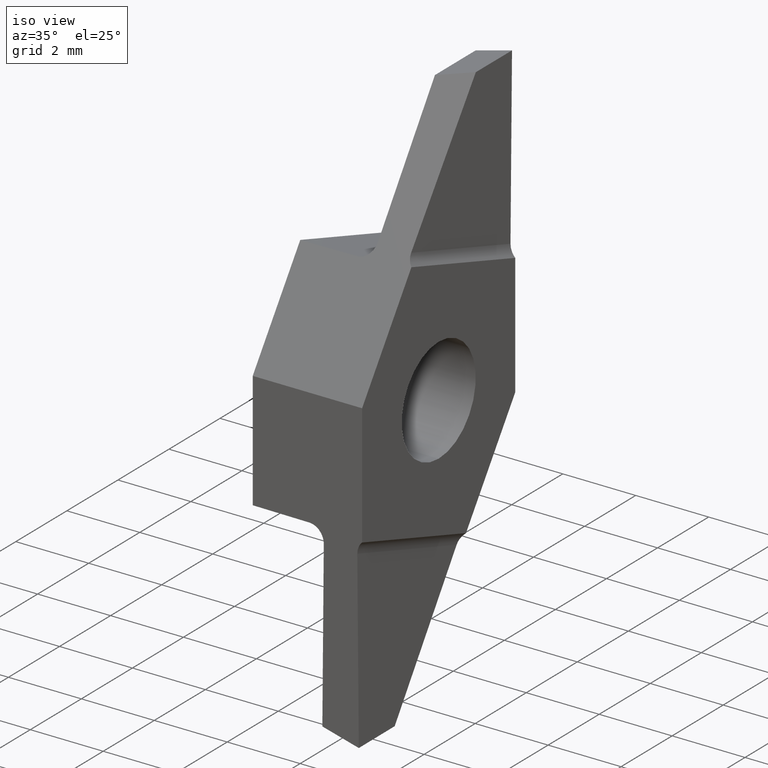
[diagram: clean part render]
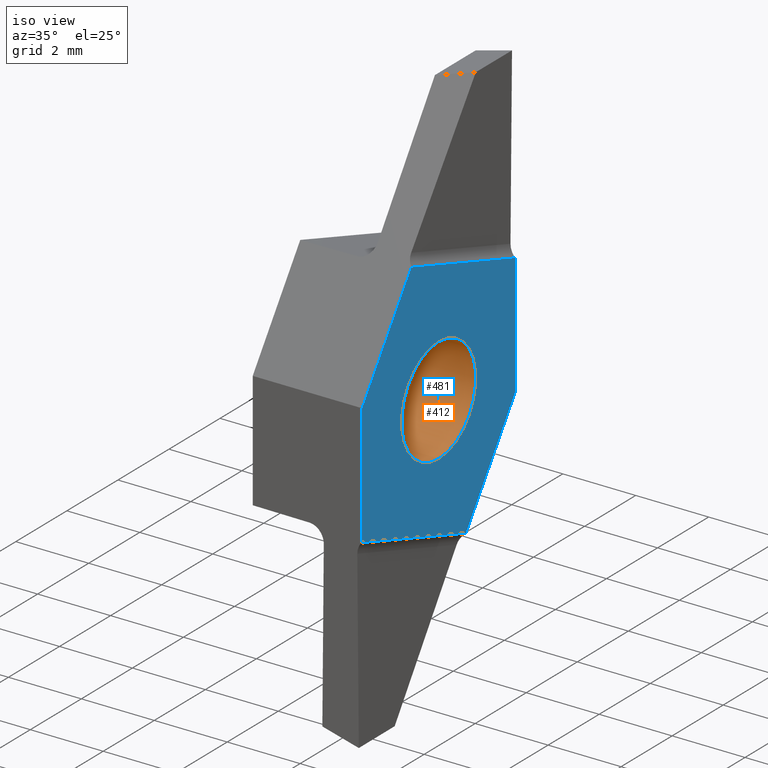
[diagram: same view with the hole feature highlighted: cylindrical wall and planar end face, labeled with their STEP entity ids]
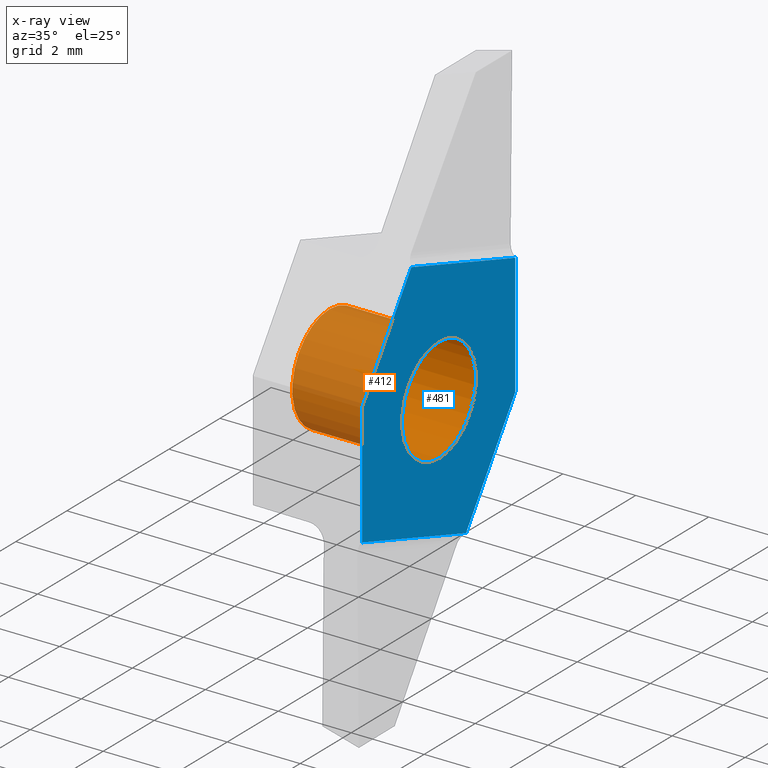
[diagram: x-ray of the same camera — body ghosted, the hole faces saturated]
A machine part, iso view. The highlighted faces form one hole feature of diameter 2.9 mm: the cylindrical wall (entity #412, orange) and its adjacent planar end face (entity #481, blue) — they share a circular edge in the B-rep.
The next image is the same camera in x-ray (body ghosted, the hole faces saturated) — the bore reads through the body.
Wall:
#6 = FACE_OUTER_BOUND ( 'NONE', #491, .T. ) ;
#44 = DIRECTION ( 'NONE',  ( -1.000000000000000000, 0.000000000000000000, 0.000000000000000000 ) ) ;
#113 = ORIENTED_EDGE ( 'NONE', *, *, #167, .T. ) ;
#155 = CIRCLE ( 'NONE', #522, 1.449999999999999067 ) ;
#158 = DIRECTION ( 'NONE',  ( 0.000000000000000000, 0.000000000000000000, -1.000000000000000000 ) ) ;
#167 = EDGE_CURVE ( 'NONE', #335, #335, #380, .T. ) ;
#224 = DIRECTION ( 'NONE',  ( 0.000000000000000000, 0.000000000000000000, -1.000000000000000000 ) ) ;
#234 = CARTESIAN_POINT ( 'NONE',  ( -1.224646799147353885E-17, 0.000000000000000000, 0.000000000000000000 ) ) ;
#277 = AXIS2_PLACEMENT_3D ( 'NONE', #464, #604, #158 ) ;
#287 = VERTEX_POINT ( 'NONE', #547 ) ;
#304 = AXIS2_PLACEMENT_3D ( 'NONE', #234, #574, #224 ) ;
#320 = CARTESIAN_POINT ( 'NONE',  ( 3.000000000000000000, 0.000000000000000000, 0.000000000000000000 ) ) ;
#335 = VERTEX_POINT ( 'NONE', #590 ) ;
#380 = CIRCLE ( 'NONE', #304, 1.449999999999999512 ) ;
#405 = CYLINDRICAL_SURFACE ( 'NONE', #277, 1.449999999999999289 ) ;
#412 = ADVANCED_FACE ( 'NONE', ( #6, #460 ), #405, .F. ) ;
#440 = ORIENTED_EDGE ( 'NONE', *, *, #552, .F. ) ;
#444 = DIRECTION ( 'NONE',  ( 0.000000000000000000, 0.000000000000000000, -1.000000000000000000 ) ) ;
#457 = EDGE_LOOP ( 'NONE', ( #113 ) ) ;
#460 = FACE_OUTER_BOUND ( 'NONE', #457, .T. ) ;
#464 = CARTESIAN_POINT ( 'NONE',  ( 0.000000000000000000, 0.000000000000000000, 0.000000000000000000 ) ) ;
#491 = EDGE_LOOP ( 'NONE', ( #440 ) ) ;
#522 = AXIS2_PLACEMENT_3D ( 'NONE', #320, #44, #444 ) ;
#547 = CARTESIAN_POINT ( 'NONE',  ( 3.000000000000000000, 0.000000000000000000, -1.449999999999999067 ) ) ;
#552 = EDGE_CURVE ( 'NONE', #287, #287, #155, .T. ) ;
#574 = DIRECTION ( 'NONE',  ( -1.000000000000000000, 0.000000000000000000, 0.000000000000000000 ) ) ;
#590 = CARTESIAN_POINT ( 'NONE',  ( -1.224646799147353885E-17, 0.000000000000000000, -1.449999999999999512 ) ) ;
#604 = DIRECTION ( 'NONE',  ( -1.000000000000000000, 0.000000000000000000, 0.000000000000000000 ) ) ;
End face:
#16 = LINE ( 'NONE', #465, #82 ) ;
#34 = LINE ( 'NONE', #328, #436 ) ;
#42 = ORIENTED_EDGE ( 'NONE', *, *, #552, .T. ) ;
#44 = DIRECTION ( 'NONE',  ( -1.000000000000000000, 0.000000000000000000, 0.000000000000000000 ) ) ;
#59 = CARTESIAN_POINT ( 'NONE',  ( 3.000000000000000000, 3.000000000000168754, -0.9458963666369464285 ) ) ;
#71 = LINE ( 'NONE', #483, #249 ) ;
#82 = VECTOR ( 'NONE', #613, 1000.000000000000227 ) ;
#86 = EDGE_CURVE ( 'NONE', #225, #420, #71, .T. ) ;
#99 = ORIENTED_EDGE ( 'NONE', *, *, #407, .T. ) ;
#114 = LINE ( 'NONE', #300, #306 ) ;
#123 = DIRECTION ( 'NONE',  ( 0.000000000000000000, 0.5735764363510444941, 0.8191520442889929088 ) ) ;
#133 = EDGE_LOOP ( 'NONE', ( #583, #270, #385, #229, #99, #189 ) ) ;
#137 = EDGE_LOOP ( 'NONE', ( #42 ) ) ;
#155 = CIRCLE ( 'NONE', #522, 1.449999999999999067 ) ;
#180 = PLANE ( 'NONE',  #199 ) ;
#188 = CARTESIAN_POINT ( 'NONE',  ( 3.000000000000000444, -1.069002824306939825, 3.703646134127897671 ) ) ;
#189 = ORIENTED_EDGE ( 'NONE', *, *, #86, .T. ) ;
#193 = VERTEX_POINT ( 'NONE', #188 ) ;
#197 = VECTOR ( 'NONE', #411, 999.9999999999998863 ) ;
#199 = AXIS2_PLACEMENT_3D ( 'NONE', #482, #432, #323 ) ;
#209 = VERTEX_POINT ( 'NONE', #496 ) ;
#212 = CARTESIAN_POINT ( 'NONE',  ( 3.000000000000000000, 1.823566348508409485, 7.834663032647361192 ) ) ;
#225 = VERTEX_POINT ( 'NONE', #59 ) ;
#229 = ORIENTED_EDGE ( 'NONE', *, *, #373, .F. ) ;
#231 = DIRECTION ( 'NONE',  ( 0.000000000000000000, 0.000000000000000000, 1.000000000000000000 ) ) ;
#235 = VERTEX_POINT ( 'NONE', #505 ) ;
#243 = EDGE_CURVE ( 'NONE', #193, #420, #554, .T. ) ;
#249 = VECTOR ( 'NONE', #231, 1000.000000000000000 ) ;
#251 = VERTEX_POINT ( 'NONE', #445 ) ;
#270 = ORIENTED_EDGE ( 'NONE', *, *, #352, .T. ) ;
#287 = VERTEX_POINT ( 'NONE', #547 ) ;
#298 = DIRECTION ( 'NONE',  ( -0.000000000000000000, 0.9510565162951556406, -0.3090169943749410675 ) ) ;
#300 = CARTESIAN_POINT ( 'NONE',  ( 3.000000000000000000, -1.823566348508071755, -7.834663032647361192 ) ) ;
#306 = VECTOR ( 'NONE', #123, 1000.000000000000114 ) ;
#320 = CARTESIAN_POINT ( 'NONE',  ( 3.000000000000000000, 0.000000000000000000, 0.000000000000000000 ) ) ;
#323 = DIRECTION ( 'NONE',  ( 0.000000000000000000, 0.000000000000000000, 1.000000000000000000 ) ) ;
#328 = CARTESIAN_POINT ( 'NONE',  ( 3.000000000000000000, -2.999999999999831246, 0.9458963666369498702 ) ) ;
#352 = EDGE_CURVE ( 'NONE', #193, #209, #516, .T. ) ;
#373 = EDGE_CURVE ( 'NONE', #235, #251, #16, .T. ) ;
#385 = ORIENTED_EDGE ( 'NONE', *, *, #485, .T. ) ;
#398 = CARTESIAN_POINT ( 'NONE',  ( 3.000000000000000444, -2.427050983125035977, 4.144902729360722127 ) ) ;
#407 = EDGE_CURVE ( 'NONE', #235, #225, #114, .T. ) ;
#411 = DIRECTION ( 'NONE',  ( 0.000000000000000000, -0.5735764363510446051, -0.8191520442889929088 ) ) ;
#420 = VERTEX_POINT ( 'NONE', #620 ) ;
#432 = DIRECTION ( 'NONE',  ( 1.000000000000000000, 0.000000000000000000, -0.000000000000000000 ) ) ;
#436 = VECTOR ( 'NONE', #626, 1000.000000000000000 ) ;
#444 = DIRECTION ( 'NONE',  ( 0.000000000000000000, 0.000000000000000000, -1.000000000000000000 ) ) ;
#445 = CARTESIAN_POINT ( 'NONE',  ( 3.000000000000000444, -2.999999999999831690, -2.381546972483334024 ) ) ;
#465 = CARTESIAN_POINT ( 'NONE',  ( 3.000000000000000444, 2.427050983125035977, -4.144902729360722127 ) ) ;
#481 = ADVANCED_FACE ( 'NONE', ( #571, #486 ), #180, .T. ) ;
#482 = CARTESIAN_POINT ( 'NONE',  ( 3.000000000000000000, 0.000000000000000000, 0.000000000000000000 ) ) ;
#483 = CARTESIAN_POINT ( 'NONE',  ( 3.000000000000000000, 3.000000000000168754, -0.9458963666369464285 ) ) ;
#485 = EDGE_CURVE ( 'NONE', #209, #251, #34, .T. ) ;
#486 = FACE_OUTER_BOUND ( 'NONE', #133, .T. ) ;
#496 = CARTESIAN_POINT ( 'NONE',  ( 3.000000000000000000, -2.999999999999831246, 0.9458963666369498702 ) ) ;
#505 = CARTESIAN_POINT ( 'NONE',  ( 3.000000000000000444, 1.069002824306939825, -3.703646134127897671 ) ) ;
#516 = LINE ( 'NONE', #212, #197 ) ;
#519 = VECTOR ( 'NONE', #298, 1000.000000000000227 ) ;
#522 = AXIS2_PLACEMENT_3D ( 'NONE', #320, #44, #444 ) ;
#547 = CARTESIAN_POINT ( 'NONE',  ( 3.000000000000000000, 0.000000000000000000, -1.449999999999999067 ) ) ;
#552 = EDGE_CURVE ( 'NONE', #287, #287, #155, .T. ) ;
#554 = LINE ( 'NONE', #398, #519 ) ;
#571 = FACE_BOUND ( 'NONE', #137, .T. ) ;
#583 = ORIENTED_EDGE ( 'NONE', *, *, #243, .F. ) ;
#613 = DIRECTION ( 'NONE',  ( 0.000000000000000000, -0.9510565162951556406, 0.3090169943749410675 ) ) ;
#620 = CARTESIAN_POINT ( 'NONE',  ( 3.000000000000000444, 2.999999999999831690, 2.381546972483334024 ) ) ;
#626 = DIRECTION ( 'NONE',  ( 0.000000000000000000, 0.000000000000000000, -1.000000000000000000 ) ) ;